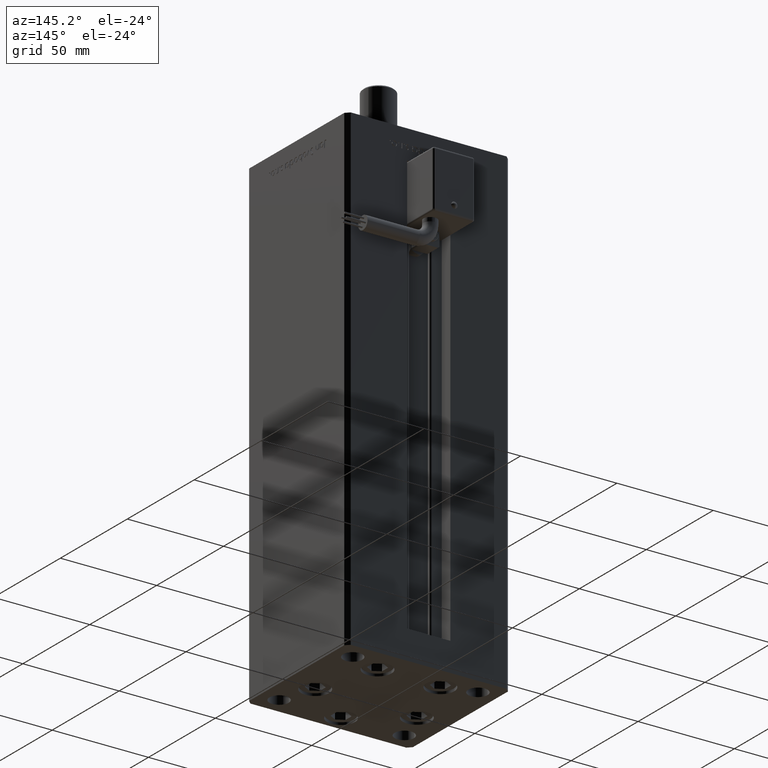
[diagram: clean part render]
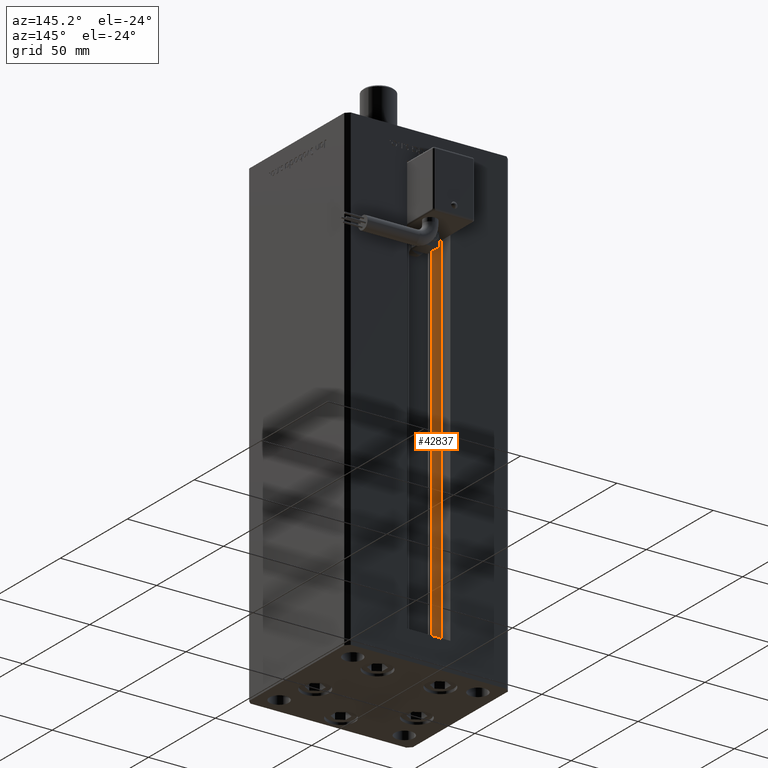
[diagram: same view with one face highlighted and labeled with its STEP entity id]
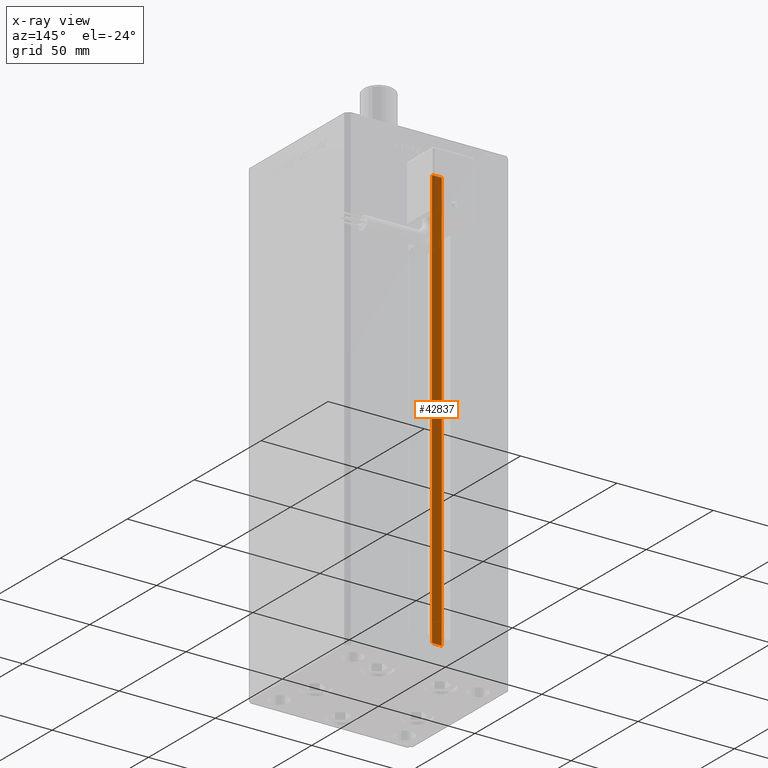
[diagram: x-ray of the same camera — body ghosted, the highlighted face saturated]
A machine part, auxiliary view. The second image highlights one B-rep face of the part: STEP entity #42837.
The next image is the same camera in x-ray: the body ghosted, the highlighted face saturated — about 8% of this face is hidden behind the body in this view.
In plain terms, the highlighted planar face has unit normal (0, -1, 0).
Its self-contained STEP definition (entity closure, byte-faithful):
#1877 = CARTESIAN_POINT ( 'NONE',  ( -11.25000000000000000, 30.99999999999999289, 218.5000000000000000 ) ) ;
#4257 = EDGE_CURVE ( 'NONE', #28591, #53738, #12118, .T. ) ;
#5594 = DIRECTION ( 'NONE',  ( 0.000000000000000000, 0.000000000000000000, -1.000000000000000000 ) ) ;
#6676 = DIRECTION ( 'NONE',  ( -0.000000000000000000, -0.000000000000000000, 1.000000000000000000 ) ) ;
#6910 = VERTEX_POINT ( 'NONE', #1877 ) ;
#7697 = ORIENTED_EDGE ( 'NONE', *, *, #23080, .F. ) ;
#8706 = CARTESIAN_POINT ( 'NONE',  ( -6.183333333333999704, 30.99999999999999289, 0.000000000000000000 ) ) ;
#9835 = CARTESIAN_POINT ( 'NONE',  ( 0.000000000000000000, 30.99999999999999289, 218.5000000000000000 ) ) ;
#12118 = LINE ( 'NONE', #37735, #54290 ) ;
#12210 = VECTOR ( 'NONE', #6676, 1000.000000000000000 ) ;
#12744 = CARTESIAN_POINT ( 'NONE',  ( -11.25000000000000000, 30.99999999999999289, 0.000000000000000000 ) ) ;
#13689 = EDGE_CURVE ( 'NONE', #44511, #6910, #28068, .T. ) ;
#15404 = AXIS2_PLACEMENT_3D ( 'NONE', #8706, #35416, #5594 ) ;
#17525 = EDGE_LOOP ( 'NONE', ( #49635, #36585, #18617, #7697 ) ) ;
#18617 = ORIENTED_EDGE ( 'NONE', *, *, #13689, .T. ) ;
#21616 = VECTOR ( 'NONE', #48107, 1000.000000000000000 ) ;
#22671 = CARTESIAN_POINT ( 'NONE',  ( -6.183333333333999704, 30.99999999999999289, 0.000000000000000000 ) ) ;
#23080 = EDGE_CURVE ( 'NONE', #53738, #6910, #39671, .T. ) ;
#23276 = CARTESIAN_POINT ( 'NONE',  ( -6.183333333333999704, 30.99999999999999289, 218.5000000000000000 ) ) ;
#24773 = FACE_OUTER_BOUND ( 'NONE', #17525, .T. ) ;
#27166 = DIRECTION ( 'NONE',  ( 1.000000000000000000, -0.000000000000000000, -0.000000000000000000 ) ) ;
#28068 = LINE ( 'NONE', #45232, #12210 ) ;
#28591 = VERTEX_POINT ( 'NONE', #31043 ) ;
#31043 = CARTESIAN_POINT ( 'NONE',  ( -6.183333333333999704, 30.99999999999999289, 0.000000000000000000 ) ) ;
#35416 = DIRECTION ( 'NONE',  ( 0.000000000000000000, -1.000000000000000000, -0.000000000000000000 ) ) ;
#36585 = ORIENTED_EDGE ( 'NONE', *, *, #37962, .F. ) ;
#37735 = CARTESIAN_POINT ( 'NONE',  ( -6.183333333333999704, 30.99999999999999289, 0.000000000000000000 ) ) ;
#37962 = EDGE_CURVE ( 'NONE', #44511, #28591, #48001, .T. ) ;
#39671 = LINE ( 'NONE', #9835, #21616 ) ;
#42241 = DIRECTION ( 'NONE',  ( -0.000000000000000000, -0.000000000000000000, 1.000000000000000000 ) ) ;
#42837 = ADVANCED_FACE ( 'NONE', ( #24773 ), #52328, .F. ) ;
#44511 = VERTEX_POINT ( 'NONE', #12744 ) ;
#45232 = CARTESIAN_POINT ( 'NONE',  ( -11.25000000000000000, 30.99999999999999289, 0.000000000000000000 ) ) ;
#48001 = LINE ( 'NONE', #22671, #50446 ) ;
#48107 = DIRECTION ( 'NONE',  ( -1.000000000000000000, 0.000000000000000000, 0.000000000000000000 ) ) ;
#49635 = ORIENTED_EDGE ( 'NONE', *, *, #4257, .F. ) ;
#50446 = VECTOR ( 'NONE', #27166, 1000.000000000000000 ) ;
#52328 = PLANE ( 'NONE',  #15404 ) ;
#53738 = VERTEX_POINT ( 'NONE', #23276 ) ;
#54290 = VECTOR ( 'NONE', #42241, 1000.000000000000000 ) ;